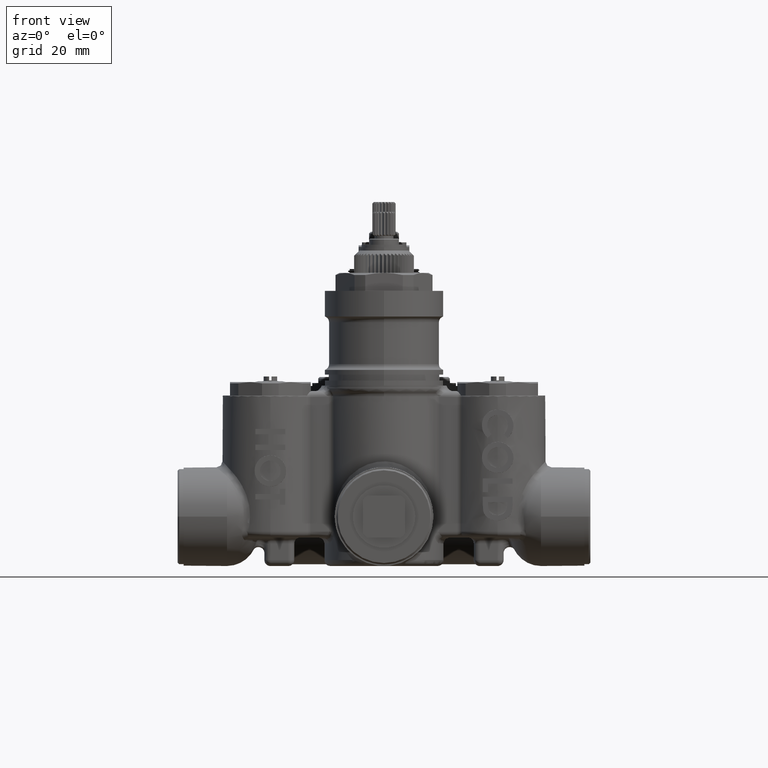
[diagram: clean part render]
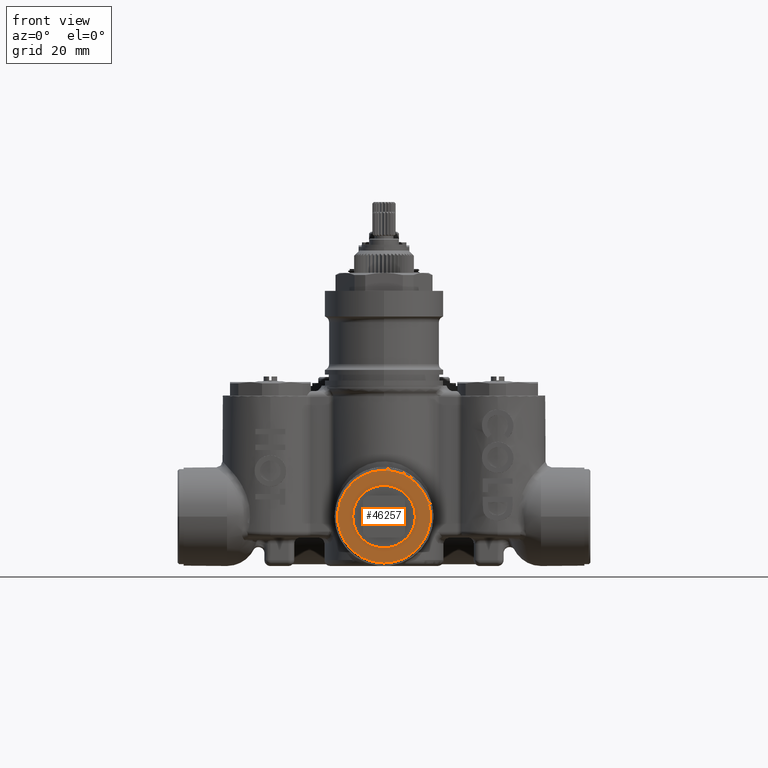
[diagram: same view with one face highlighted and labeled with its STEP entity id]
A machine part, front view. The second image highlights one B-rep face of the part: STEP entity #46257.
In plain terms, the highlighted planar face has unit normal (0, -1, 0).
Its self-contained STEP definition (entity closure, byte-faithful):
#841=CARTESIAN_POINT('',(0.E0,-1.476377952756E0,-2.35039E0));
#842=DIRECTION('',(0.E0,-1.E0,0.E0));
#843=DIRECTION('',(0.E0,0.E0,1.E0));
#844=AXIS2_PLACEMENT_3D('',#841,#842,#843);
#856=CARTESIAN_POINT('',(0.E0,-1.476377952756E0,-2.35039E0));
#857=DIRECTION('',(0.E0,1.E0,0.E0));
#858=DIRECTION('',(-1.E0,0.E0,0.E0));
#859=AXIS2_PLACEMENT_3D('',#856,#857,#858);
#861=CARTESIAN_POINT('',(0.E0,-1.476377952756E0,-2.35039E0));
#862=DIRECTION('',(0.E0,1.E0,0.E0));
#863=DIRECTION('',(1.E0,0.E0,-4.102060105734E-10));
#864=AXIS2_PLACEMENT_3D('',#861,#862,#863);
#866=CARTESIAN_POINT('',(0.E0,-1.476377952756E0,-2.35039E0));
#867=DIRECTION('',(0.E0,-1.E0,0.E0));
#868=DIRECTION('',(0.E0,0.E0,-1.E0));
#869=AXIS2_PLACEMENT_3D('',#866,#867,#868);
#40874=CARTESIAN_POINT('',(0.E0,-1.476377952756E0,-1.740153779528E0));
#40875=CARTESIAN_POINT('',(0.E0,-1.476377952756E0,-2.960626220472E0));
#40876=VERTEX_POINT('',#40874);
#40877=VERTEX_POINT('',#40875);
#40967=CARTESIAN_POINT('',(-4.125E-1,-1.476377952756E0,-2.35039E0));
#40968=CARTESIAN_POINT('',(4.125E-1,-1.476377952756E0,-2.350390000169E0));
#40969=VERTEX_POINT('',#40967);
#40970=VERTEX_POINT('',#40968);
#46241=CARTESIAN_POINT('',(0.E0,-1.476377952756E0,-2.35039E0));
#46242=DIRECTION('',(0.E0,-1.E0,0.E0));
#46243=DIRECTION('',(1.E0,0.E0,0.E0));
#46244=AXIS2_PLACEMENT_3D('',#46241,#46242,#46243);
#46245=PLANE('',#46244);
#46246=ORIENTED_EDGE('',*,*,#46230,.F.);
#46248=ORIENTED_EDGE('',*,*,#46247,.F.);
#46249=EDGE_LOOP('',(#46246,#46248));
#46250=FACE_OUTER_BOUND('',#46249,.F.);
#46252=ORIENTED_EDGE('',*,*,#46251,.F.);
#46254=ORIENTED_EDGE('',*,*,#46253,.F.);
#46255=EDGE_LOOP('',(#46252,#46254));
#46256=FACE_BOUND('',#46255,.F.);
#46257=ADVANCED_FACE('',(#46250,#46256),#46245,.T.);
#845=CIRCLE('',#844,6.102362204724E-1);
#860=CIRCLE('',#859,4.125E-1);
#865=CIRCLE('',#864,4.125E-1);
#870=CIRCLE('',#869,6.102362204724E-1);
#46230=EDGE_CURVE('',#40876,#40877,#845,.T.);
#46247=EDGE_CURVE('',#40877,#40876,#870,.T.);
#46251=EDGE_CURVE('',#40969,#40970,#860,.T.);
#46253=EDGE_CURVE('',#40970,#40969,#865,.T.);